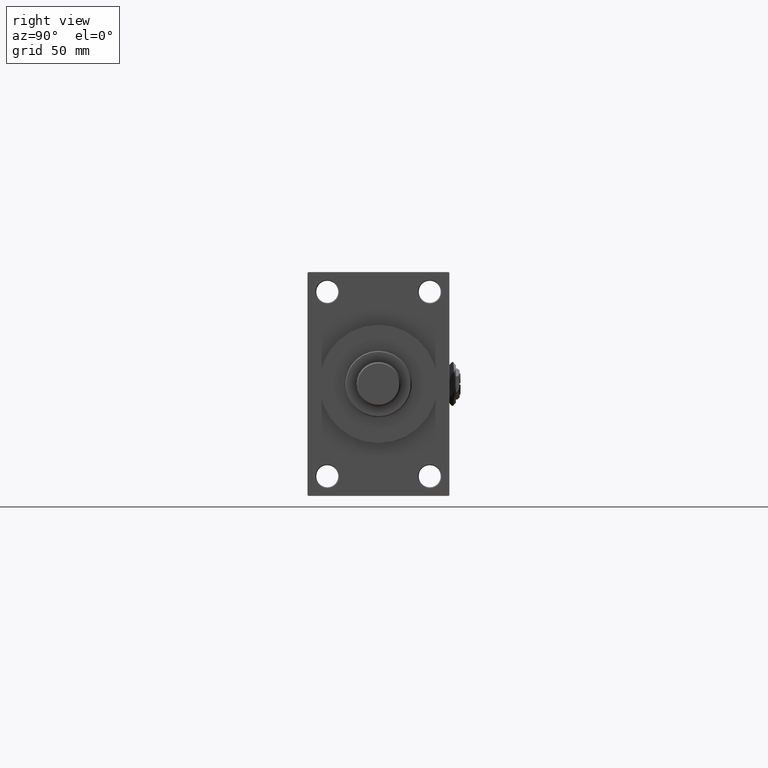
[diagram: clean part render]
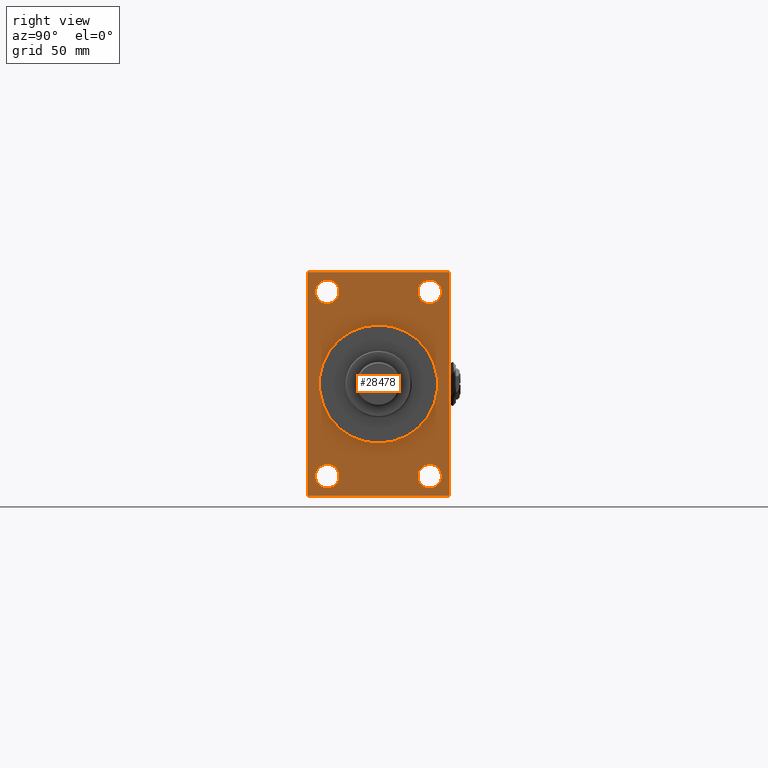
[diagram: same view with one face highlighted and labeled with its STEP entity id]
A machine part, right view. The second image highlights one B-rep face of the part: STEP entity #28478.
In plain terms, the highlighted planar face has unit normal (-1, 0, 0).
Its self-contained STEP definition (entity closure, byte-faithful):
#229 = CARTESIAN_POINT ( 'NONE',  ( 339.9999999999999432, 4.592425496802575156E-15, -37.50000000000000711 ) ) ;
#537 = EDGE_CURVE ( 'NONE', #31174, #39592, #3413, .T. ) ;
#560 = ORIENTED_EDGE ( 'NONE', *, *, #25004, .F. ) ;
#670 = DIRECTION ( 'NONE',  ( 0.000000000000000000, 0.000000000000000000, 1.000000000000000000 ) ) ;
#864 = VERTEX_POINT ( 'NONE', #39154 ) ;
#1052 = CARTESIAN_POINT ( 'NONE',  ( 339.9999999999999432, -32.50000000000000000, 58.50000000000000711 ) ) ;
#2086 = CIRCLE ( 'NONE', #21202, 7.500000000000180300 ) ;
#2431 = EDGE_CURVE ( 'NONE', #21420, #2564, #2086, .T. ) ;
#2564 = VERTEX_POINT ( 'NONE', #39412 ) ;
#2810 = AXIS2_PLACEMENT_3D ( 'NONE', #48646, #14416, #26136 ) ;
#3343 = CARTESIAN_POINT ( 'NONE',  ( 339.9999999999999432, 32.50000000000000711, 50.99999999999985079 ) ) ;
#3413 = CIRCLE ( 'NONE', #26548, 7.500000000000173195 ) ;
#3528 = CARTESIAN_POINT ( 'NONE',  ( 339.9999999999999432, -32.50000000000000000, -50.99999999999981526 ) ) ;
#3773 = EDGE_CURVE ( 'NONE', #29953, #44240, #17833, .T. ) ;
#4194 = CARTESIAN_POINT ( 'NONE',  ( 339.9999999999999432, 0.000000000000000000, 0.000000000000000000 ) ) ;
#4443 = DIRECTION ( 'NONE',  ( 0.000000000000000000, 0.000000000000000000, 1.000000000000000000 ) ) ;
#4980 = EDGE_CURVE ( 'NONE', #18948, #8513, #28469, .T. ) ;
#6933 = DIRECTION ( 'NONE',  ( 0.000000000000000000, -1.000000000000000000, -1.541976423090495387E-16 ) ) ;
#7024 = DIRECTION ( 'NONE',  ( -1.000000000000000000, 0.000000000000000000, -0.000000000000000000 ) ) ;
#7457 = FACE_BOUND ( 'NONE', #44946, .T. ) ;
#7686 = CARTESIAN_POINT ( 'NONE',  ( 339.9999999999999432, 32.50000000000000711, 66.00000000000017053 ) ) ;
#7705 = ORIENTED_EDGE ( 'NONE', *, *, #29596, .F. ) ;
#7951 = DIRECTION ( 'NONE',  ( -0.000000000000000000, 0.000000000000000000, 1.000000000000000000 ) ) ;
#8513 = VERTEX_POINT ( 'NONE', #229 ) ;
#8534 = CARTESIAN_POINT ( 'NONE',  ( 339.9999999999999432, 0.000000000000000000, 37.50000000000000711 ) ) ;
#9106 = AXIS2_PLACEMENT_3D ( 'NONE', #4194, #15449, #7951 ) ;
#9173 = AXIS2_PLACEMENT_3D ( 'NONE', #14283, #7024, #45757 ) ;
#9807 = CIRCLE ( 'NONE', #37740, 37.50000000000000711 ) ;
#10020 = CARTESIAN_POINT ( 'NONE',  ( 339.9999999999999432, 44.49999999999996447, 71.00000000000000000 ) ) ;
#10049 = CARTESIAN_POINT ( 'NONE',  ( 339.9999999999999432, 32.50000000000000711, -58.50000000000000000 ) ) ;
#10464 = VERTEX_POINT ( 'NONE', #38856 ) ;
#10633 = VECTOR ( 'NONE', #14752, 1000.000000000000000 ) ;
#10692 = ORIENTED_EDGE ( 'NONE', *, *, #12340, .T. ) ;
#10707 = FACE_BOUND ( 'NONE', #12958, .T. ) ;
#11705 = FACE_BOUND ( 'NONE', #44701, .T. ) ;
#12221 = AXIS2_PLACEMENT_3D ( 'NONE', #1052, #47011, #21673 ) ;
#12340 = EDGE_CURVE ( 'NONE', #47905, #22525, #33399, .T. ) ;
#12636 = CARTESIAN_POINT ( 'NONE',  ( 339.9999999999999432, -44.99999999999997158, 70.49999999999992895 ) ) ;
#12958 = EDGE_LOOP ( 'NONE', ( #21724, #10692 ) ) ;
#13457 = ORIENTED_EDGE ( 'NONE', *, *, #30453, .T. ) ;
#13872 = CARTESIAN_POINT ( 'NONE',  ( 339.9999999999999432, 45.00000000000001421, -70.99999999999998579 ) ) ;
#14084 = CARTESIAN_POINT ( 'NONE',  ( 339.9999999999999432, -44.99999999999997158, -70.50000000000000000 ) ) ;
#14095 = VERTEX_POINT ( 'NONE', #31148 ) ;
#14135 = LINE ( 'NONE', #30105, #17997 ) ;
#14283 = CARTESIAN_POINT ( 'NONE',  ( 339.9999999999999432, 32.50000000000000711, -58.50000000000000000 ) ) ;
#14416 = DIRECTION ( 'NONE',  ( -1.000000000000000000, 0.000000000000000000, -0.000000000000000000 ) ) ;
#14455 = FACE_BOUND ( 'NONE', #36088, .T. ) ;
#14721 = ORIENTED_EDGE ( 'NONE', *, *, #34065, .T. ) ;
#14752 = DIRECTION ( 'NONE',  ( 0.000000000000000000, -0.7071067811865867636, 0.7071067811865081598 ) ) ;
#15206 = PLANE ( 'NONE',  #9106 ) ;
#15449 = DIRECTION ( 'NONE',  ( -1.000000000000000000, 0.000000000000000000, -0.000000000000000000 ) ) ;
#15558 = CIRCLE ( 'NONE', #9173, 7.500000000000173195 ) ;
#15695 = CARTESIAN_POINT ( 'NONE',  ( 339.9999999999999432, -32.50000000000000000, -58.49999999999999289 ) ) ;
#15919 = CARTESIAN_POINT ( 'NONE',  ( 339.9999999999999432, 32.50000000000000711, -66.00000000000017053 ) ) ;
#16000 = ORIENTED_EDGE ( 'NONE', *, *, #3773, .F. ) ;
#16130 = LINE ( 'NONE', #12636, #20025 ) ;
#16668 = EDGE_CURVE ( 'NONE', #32273, #48281, #16130, .T. ) ;
#16929 = VECTOR ( 'NONE', #22500, 1000.000000000000114 ) ;
#17498 = AXIS2_PLACEMENT_3D ( 'NONE', #34890, #23141, #670 ) ;
#17833 = LINE ( 'NONE', #41744, #38009 ) ;
#17997 = VECTOR ( 'NONE', #41102, 1000.000000000000000 ) ;
#18242 = LINE ( 'NONE', #10020, #10633 ) ;
#18253 = LINE ( 'NONE', #34495, #16929 ) ;
#18429 = LINE ( 'NONE', #29916, #34059 ) ;
#18659 = CARTESIAN_POINT ( 'NONE',  ( 339.9999999999999432, -44.49999999999994316, -71.00000000000000000 ) ) ;
#18948 = VERTEX_POINT ( 'NONE', #8534 ) ;
#19307 = LINE ( 'NONE', #34553, #45315 ) ;
#19821 = AXIS2_PLACEMENT_3D ( 'NONE', #27039, #41791, #34551 ) ;
#20025 = VECTOR ( 'NONE', #23857, 1000.000000000000000 ) ;
#20489 = EDGE_CURVE ( 'NONE', #10464, #44240, #18253, .T. ) ;
#21202 = AXIS2_PLACEMENT_3D ( 'NONE', #15695, #27667, #4443 ) ;
#21285 = ORIENTED_EDGE ( 'NONE', *, *, #20489, .T. ) ;
#21420 = VERTEX_POINT ( 'NONE', #3528 ) ;
#21673 = DIRECTION ( 'NONE',  ( 0.000000000000000000, 0.000000000000000000, 1.000000000000000000 ) ) ;
#21724 = ORIENTED_EDGE ( 'NONE', *, *, #42092, .T. ) ;
#21915 = DIRECTION ( 'NONE',  ( 1.000000000000000000, 0.000000000000000000, 0.000000000000000000 ) ) ;
#22005 = DIRECTION ( 'NONE',  ( 1.000000000000000000, 0.000000000000000000, 0.000000000000000000 ) ) ;
#22162 = DIRECTION ( 'NONE',  ( 0.000000000000000000, 0.000000000000000000, -1.000000000000000000 ) ) ;
#22500 = DIRECTION ( 'NONE',  ( -0.000000000000000000, 0.7071067811864985009, 0.7071067811865965336 ) ) ;
#22525 = VERTEX_POINT ( 'NONE', #3343 ) ;
#23141 = DIRECTION ( 'NONE',  ( -1.000000000000000000, 0.000000000000000000, -0.000000000000000000 ) ) ;
#23857 = DIRECTION ( 'NONE',  ( -0.000000000000000000, -0.7071067811865426878, -0.7071067811865524577 ) ) ;
#24123 = DIRECTION ( 'NONE',  ( 0.000000000000000000, 0.000000000000000000, 1.000000000000000000 ) ) ;
#24306 = CIRCLE ( 'NONE', #37766, 7.500000000000158984 ) ;
#24362 = DIRECTION ( 'NONE',  ( -1.000000000000000000, 0.000000000000000000, -0.000000000000000000 ) ) ;
#24609 = CARTESIAN_POINT ( 'NONE',  ( 339.9999999999999432, -32.50000000000000000, 58.50000000000000711 ) ) ;
#24780 = EDGE_CURVE ( 'NONE', #27228, #14095, #33750, .T. ) ;
#25004 = EDGE_CURVE ( 'NONE', #8513, #18948, #9807, .T. ) ;
#25227 = EDGE_LOOP ( 'NONE', ( #26749, #46518, #7705, #21285, #16000, #47792, #37188, #25383 ) ) ;
#25264 = DIRECTION ( 'NONE',  ( -1.000000000000000000, 0.000000000000000000, -0.000000000000000000 ) ) ;
#25383 = ORIENTED_EDGE ( 'NONE', *, *, #16668, .T. ) ;
#25729 = EDGE_CURVE ( 'NONE', #29953, #864, #18242, .T. ) ;
#26136 = DIRECTION ( 'NONE',  ( 0.000000000000000000, 0.000000000000000000, 1.000000000000000000 ) ) ;
#26138 = ORIENTED_EDGE ( 'NONE', *, *, #537, .T. ) ;
#26548 = AXIS2_PLACEMENT_3D ( 'NONE', #10049, #25264, #40517 ) ;
#26749 = ORIENTED_EDGE ( 'NONE', *, *, #45406, .T. ) ;
#27039 = CARTESIAN_POINT ( 'NONE',  ( 339.9999999999999432, 32.50000000000000711, 58.50000000000000711 ) ) ;
#27228 = VERTEX_POINT ( 'NONE', #43028 ) ;
#27586 = CARTESIAN_POINT ( 'NONE',  ( 339.9999999999999432, 45.00000000000001421, -70.49999999999997158 ) ) ;
#27667 = DIRECTION ( 'NONE',  ( -1.000000000000000000, 0.000000000000000000, -0.000000000000000000 ) ) ;
#27970 = EDGE_CURVE ( 'NONE', #42817, #37667, #14135, .T. ) ;
#28469 = CIRCLE ( 'NONE', #30858, 37.50000000000000711 ) ;
#28478 = ADVANCED_FACE ( 'NONE', ( #11705, #14455, #37427, #10707, #7457, #33690 ), #15206, .F. ) ;
#29015 = DIRECTION ( 'NONE',  ( 0.000000000000000000, 0.000000000000000000, -1.000000000000000000 ) ) ;
#29596 = EDGE_CURVE ( 'NONE', #10464, #37667, #38268, .T. ) ;
#29908 = CARTESIAN_POINT ( 'NONE',  ( 339.9999999999999432, 0.000000000000000000, 0.000000000000000000 ) ) ;
#29916 = CARTESIAN_POINT ( 'NONE',  ( 339.9999999999999432, 45.00000000000002132, 71.00000000000000000 ) ) ;
#29953 = VERTEX_POINT ( 'NONE', #45709 ) ;
#30105 = CARTESIAN_POINT ( 'NONE',  ( 339.9999999999999432, -44.49999999999997158, -71.00000000000000000 ) ) ;
#30453 = EDGE_CURVE ( 'NONE', #14095, #27228, #24306, .T. ) ;
#30757 = EDGE_LOOP ( 'NONE', ( #26138, #14721 ) ) ;
#30858 = AXIS2_PLACEMENT_3D ( 'NONE', #40759, #22005, #29015 ) ;
#31148 = CARTESIAN_POINT ( 'NONE',  ( 339.9999999999999432, -32.50000000000000000, 66.00000000000017053 ) ) ;
#31174 = VERTEX_POINT ( 'NONE', #15919 ) ;
#32273 = VERTEX_POINT ( 'NONE', #40690 ) ;
#33399 = CIRCLE ( 'NONE', #17498, 7.500000000000158984 ) ;
#33690 = FACE_OUTER_BOUND ( 'NONE', #25227, .T. ) ;
#33750 = CIRCLE ( 'NONE', #12221, 7.500000000000158984 ) ;
#34059 = VECTOR ( 'NONE', #6933, 1000.000000000000000 ) ;
#34065 = EDGE_CURVE ( 'NONE', #39592, #31174, #15558, .T. ) ;
#34495 = CARTESIAN_POINT ( 'NONE',  ( 339.9999999999999432, 45.00000000000001421, -70.49999999999997158 ) ) ;
#34551 = DIRECTION ( 'NONE',  ( 0.000000000000000000, 0.000000000000000000, 1.000000000000000000 ) ) ;
#34553 = CARTESIAN_POINT ( 'NONE',  ( 339.9999999999999432, -44.99999999999997158, 70.99999999999998579 ) ) ;
#34890 = CARTESIAN_POINT ( 'NONE',  ( 339.9999999999999432, 32.50000000000000711, 58.50000000000000711 ) ) ;
#35359 = EDGE_CURVE ( 'NONE', #2564, #21420, #44281, .T. ) ;
#35878 = ORIENTED_EDGE ( 'NONE', *, *, #35359, .T. ) ;
#36088 = EDGE_LOOP ( 'NONE', ( #35878, #49058 ) ) ;
#36265 = VECTOR ( 'NONE', #49019, 1000.000000000000000 ) ;
#36562 = DIRECTION ( 'NONE',  ( 0.000000000000000000, -4.886545002751570165E-17, -1.000000000000000000 ) ) ;
#37188 = ORIENTED_EDGE ( 'NONE', *, *, #39796, .T. ) ;
#37427 = FACE_BOUND ( 'NONE', #30757, .T. ) ;
#37667 = VERTEX_POINT ( 'NONE', #18659 ) ;
#37740 = AXIS2_PLACEMENT_3D ( 'NONE', #29908, #21915, #22162 ) ;
#37766 = AXIS2_PLACEMENT_3D ( 'NONE', #24609, #24362, #24123 ) ;
#38009 = VECTOR ( 'NONE', #36562, 1000.000000000000000 ) ;
#38268 = LINE ( 'NONE', #13872, #36265 ) ;
#38473 = CARTESIAN_POINT ( 'NONE',  ( 339.9999999999999432, 32.50000000000000711, -50.99999999999982236 ) ) ;
#38856 = CARTESIAN_POINT ( 'NONE',  ( 339.9999999999999432, 44.50000000000006395, -70.99999999999998579 ) ) ;
#39154 = CARTESIAN_POINT ( 'NONE',  ( 339.9999999999999432, 44.49999999999996447, 71.00000000000000000 ) ) ;
#39412 = CARTESIAN_POINT ( 'NONE',  ( 339.9999999999999432, -32.50000000000000000, -66.00000000000015632 ) ) ;
#39592 = VERTEX_POINT ( 'NONE', #38473 ) ;
#39796 = EDGE_CURVE ( 'NONE', #864, #32273, #18429, .T. ) ;
#40517 = DIRECTION ( 'NONE',  ( 0.000000000000000000, 0.000000000000000000, 1.000000000000000000 ) ) ;
#40690 = CARTESIAN_POINT ( 'NONE',  ( 339.9999999999999432, -44.49999999999989342, 70.99999999999998579 ) ) ;
#40759 = CARTESIAN_POINT ( 'NONE',  ( 339.9999999999999432, 0.000000000000000000, 0.000000000000000000 ) ) ;
#41102 = DIRECTION ( 'NONE',  ( 0.000000000000000000, 0.7071067811865573427, -0.7071067811865378028 ) ) ;
#41744 = CARTESIAN_POINT ( 'NONE',  ( 339.9999999999999432, 45.00000000000002132, 71.00000000000000000 ) ) ;
#41791 = DIRECTION ( 'NONE',  ( -1.000000000000000000, 0.000000000000000000, -0.000000000000000000 ) ) ;
#42092 = EDGE_CURVE ( 'NONE', #22525, #47905, #49333, .T. ) ;
#42817 = VERTEX_POINT ( 'NONE', #14084 ) ;
#42830 = CARTESIAN_POINT ( 'NONE',  ( 339.9999999999999432, -44.99999999999997158, 70.49999999999992895 ) ) ;
#43028 = CARTESIAN_POINT ( 'NONE',  ( 339.9999999999999432, -32.50000000000000000, 50.99999999999985079 ) ) ;
#43045 = ORIENTED_EDGE ( 'NONE', *, *, #24780, .T. ) ;
#44240 = VERTEX_POINT ( 'NONE', #27586 ) ;
#44281 = CIRCLE ( 'NONE', #2810, 7.500000000000180300 ) ;
#44701 = EDGE_LOOP ( 'NONE', ( #43045, #13457 ) ) ;
#44946 = EDGE_LOOP ( 'NONE', ( #48588, #560 ) ) ;
#45315 = VECTOR ( 'NONE', #49302, 1000.000000000000000 ) ;
#45406 = EDGE_CURVE ( 'NONE', #48281, #42817, #19307, .T. ) ;
#45709 = CARTESIAN_POINT ( 'NONE',  ( 339.9999999999999432, 45.00000000000002132, 70.50000000000000000 ) ) ;
#45757 = DIRECTION ( 'NONE',  ( 0.000000000000000000, 0.000000000000000000, 1.000000000000000000 ) ) ;
#46518 = ORIENTED_EDGE ( 'NONE', *, *, #27970, .T. ) ;
#47011 = DIRECTION ( 'NONE',  ( -1.000000000000000000, 0.000000000000000000, -0.000000000000000000 ) ) ;
#47792 = ORIENTED_EDGE ( 'NONE', *, *, #25729, .T. ) ;
#47905 = VERTEX_POINT ( 'NONE', #7686 ) ;
#48281 = VERTEX_POINT ( 'NONE', #42830 ) ;
#48588 = ORIENTED_EDGE ( 'NONE', *, *, #4980, .F. ) ;
#48646 = CARTESIAN_POINT ( 'NONE',  ( 339.9999999999999432, -32.50000000000000000, -58.49999999999999289 ) ) ;
#49019 = DIRECTION ( 'NONE',  ( 0.000000000000000000, -1.000000000000000000, -1.541976423090495633E-16 ) ) ;
#49058 = ORIENTED_EDGE ( 'NONE', *, *, #2431, .T. ) ;
#49302 = DIRECTION ( 'NONE',  ( 0.000000000000000000, 0.000000000000000000, -1.000000000000000000 ) ) ;
#49333 = CIRCLE ( 'NONE', #19821, 7.500000000000158984 ) ;